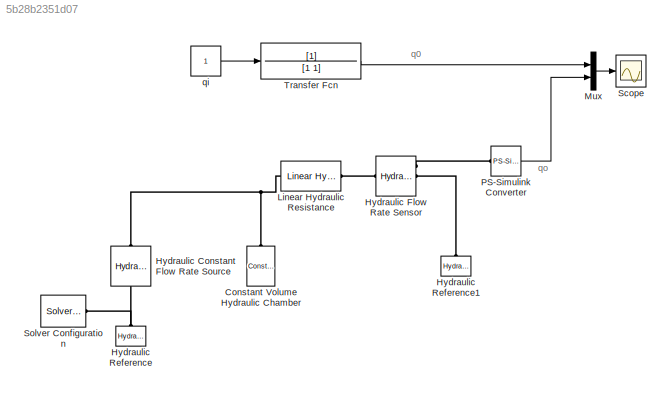
MODEL slx_5b28b2351d07
KIND model
CONFIG AbsTol = auto
CONFIG EnableMultiTasking = off
CONFIG FixedStep = auto
CONFIG MaxStep = auto
CONFIG MinStep = auto
CONFIG RelTol = 1e-3
CONFIG SampleTimeConstraint = Unconstrained
CONFIG Solver = VariableStepAuto
CONFIG SolverName = VariableStepAuto
CONFIG StartTime = 0.0
CONFIG StopTime = 10.0
BLOCK [Reference] Constant Volume Hydraulic Chamber  REF=fl_lib/Hydraulic/Hydraulic Elements/Constant Volume
Hydraulic Chamber
  Ports = [0, 0, 0, 0, 0, 1]
  SourceBlock = fl_lib/Hydraulic/Hydraulic Elements/Constant Volume\nHydraulic Chamber
  SourceProductBaseCode = SS
  SourceProductName = Simscape
  SourceType = Constant Volume\nHydraulic Chamber
BLOCK [Reference] Hydraulic Constant Flow Rate Source  REF=fl_lib/Hydraulic/Hydraulic Sources/Hydraulic Constant
Flow Rate Source
  Ports = [0, 0, 0, 0, 0, 1, 1]
  SourceBlock = fl_lib/Hydraulic/Hydraulic Sources/Hydraulic Constant\nFlow Rate Source
  SourceProductBaseCode = SS
  SourceProductName = Simscape
  SourceType = Hydraulic Constant\nFlow Rate Source
BLOCK [Reference] Hydraulic Flow Rate Sensor  REF=fl_lib/Hydraulic/Hydraulic Sensors/Hydraulic Flow Rate
Sensor
  Ports = [0, 0, 0, 0, 0, 1, 3]
  SourceBlock = fl_lib/Hydraulic/Hydraulic Sensors/Hydraulic Flow Rate\nSensor
  SourceProductBaseCode = SS
  SourceProductName = Simscape
  SourceType = Hydraulic Flow Rate\nSensor
BLOCK [Reference] Hydraulic Reference  REF=fl_lib/Hydraulic/Hydraulic Elements/Hydraulic Reference
  Ports = [0, 0, 0, 0, 0, 1]
  SourceBlock = fl_lib/Hydraulic/Hydraulic Elements/Hydraulic Reference
  SourceProductBaseCode = SS
  SourceProductName = Simscape
  SourceType = Hydraulic Reference
BLOCK [Reference] Hydraulic Reference1  REF=fl_lib/Hydraulic/Hydraulic Elements/Hydraulic Reference
  Ports = [0, 0, 0, 0, 0, 1]
  SourceBlock = fl_lib/Hydraulic/Hydraulic Elements/Hydraulic Reference
  SourceProductBaseCode = SS
  SourceProductName = Simscape
  SourceType = Hydraulic Reference
BLOCK [Reference] Linear Hydraulic Resistance  REF=fl_lib/Hydraulic/Hydraulic Elements/Linear Hydraulic
Resistance
  Ports = [0, 0, 0, 0, 0, 1, 1]
  SourceBlock = fl_lib/Hydraulic/Hydraulic Elements/Linear Hydraulic\nResistance
  SourceProductBaseCode = SS
  SourceProductName = Simscape
  SourceType = Linear Hydraulic\nResistance
BLOCK [Mux] Mux
  DisplayOption = bar
  Inputs = 2
  Ports = [2, 1]
BLOCK [Reference] PS-Simulink Converter  REF=nesl_utility/PS-Simulink
Converter
  Ports = [0, 1, 0, 0, 0, 1]
  SourceBlock = nesl_utility/PS-Simulink\nConverter
  SourceProductBaseCode = SS
  SourceProductName = Simscape
  SourceType = PS-Simulink\nConverter
BLOCK [Scope] Scope
  NumInputPorts = 1
  Ports = [1]
  ScopeSpecificationString = Simulink.scopes.TimeScopeBlockCfg('CurrentConfiguration', extmgr.ConfigurationSet(extmgr.Configuration('Core','General UI',true),extmgr.Configuration('Core','Source UI',true),extmgr.Configuration('Sources','WiredSimulink',true),extmgr.Configuration('Visuals','Time Domain',true,'SerializedDisplays',{struct('MinYLimReal','-1.25','MaxYLimReal','11.25001','YLabelReal','','MinYLimMag','0.00000','MaxYLi...<+1410ch>
BLOCK [Reference] Solver Configuration  REF=nesl_utility/Solver
Configuration
  Ports = [0, 0, 0, 0, 0, 0, 1]
  SourceBlock = nesl_utility/Solver\nConfiguration
  SourceProductBaseCode = SS
  SourceProductName = Simscape
  SourceType = Solver\nConfiguration
BLOCK [TransferFcn] Transfer Fcn
  Denominator = [1 1]
BLOCK [Constant] qi
ANNOTATION (root): q0
ANNOTATION (root): qo
LINE Mux:1 -> Scope:1
LINE PS-Simulink Converter:1 -> Mux:2
LINE Transfer Fcn:1 -> Mux:1
LINE qi:1 -> Transfer Fcn:1
PNET net1: Constant Volume Hydraulic Chamber:LConn1 -- Hydraulic Constant Flow Rate Source:LConn1 -- Linear Hydraulic Resistance:LConn1
PNET net2: Hydraulic Constant Flow Rate Source:RConn1 -- Hydraulic Reference:LConn1 -- Solver Configuration:RConn1
PLINE Hydraulic Flow Rate Sensor:LConn1 -- Linear Hydraulic Resistance:RConn1
PLINE Hydraulic Flow Rate Sensor:RConn1 -- PS-Simulink Converter:LConn1
PLINE Hydraulic Flow Rate Sensor:RConn2 -- Hydraulic Reference1:LConn1
note: PNET lines group multi-terminal physical nets as a canonical sorted terminal list (undirected conserving connections); 2-terminal nets keep the pairwise PLINE form
